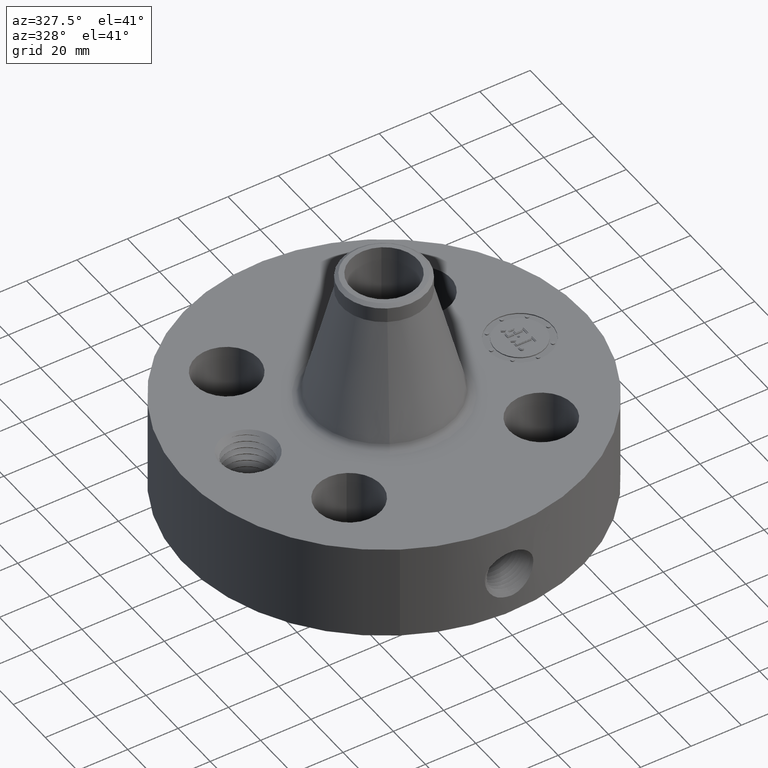
[diagram: clean part render]
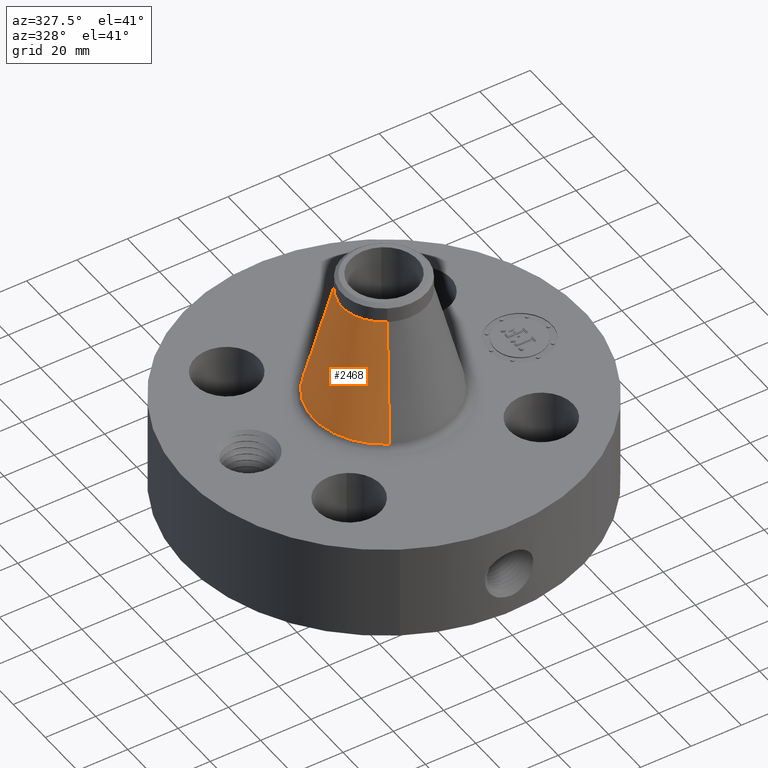
[diagram: same view with one face highlighted and labeled with its STEP entity id]
A machine part, auxiliary view. The second image highlights one B-rep face of the part: STEP entity #2468.
In plain terms, the highlighted conical surface has half-angle 14.181 deg.
Its self-contained STEP definition (entity closure, byte-faithful):
#1861=AXIS2_PLACEMENT_3D('Circle Axis2P3D',#1859,#1860,$) ;
#2429=AXIS2_PLACEMENT_3D('Cone Axis2P3D',#2426,#2427,#2428) ;
#2459=AXIS2_PLACEMENT_3D('Circle Axis2P3D',#2457,#2458,$) ;
#1837=CARTESIAN_POINT('Vertex',(0.528377857278,0.967189180172,1.840601666)) ;
#1844=CARTESIAN_POINT('Vertex',(-0.528377857278,-0.967189180172,1.840601666)) ;
#1859=CARTESIAN_POINT('Axis2P3D Location',(0.,0.,1.840601666)) ;
#2426=CARTESIAN_POINT('Axis2P3D Location',(0.,0.,3.59022616858)) ;
#2431=CARTESIAN_POINT('Line Origine',(0.422399356379,0.773196835511,2.71541391729)) ;
#2435=CARTESIAN_POINT('Vertex',(0.31642085548,0.57920449085,3.59022616858)) ;
#2442=CARTESIAN_POINT('Vertex',(-0.31642085548,-0.57920449085,3.59022616858)) ;
#2445=CARTESIAN_POINT('Line Origine',(-0.422399356379,-0.773196835511,2.71541391729)) ;
#2457=CARTESIAN_POINT('Axis2P3D Location',(0.,0.,3.59022616858)) ;
#1860=DIRECTION('Axis2P3D Direction',(0.,0.,-0.0393700787402)) ;
#2427=DIRECTION('Axis2P3D Direction',(0.,0.,-0.0393700787402)) ;
#2428=DIRECTION('Axis2P3D XDirection',(-0.0188750212049,-0.0345504945626,0.)) ;
#2432=DIRECTION('Vector Direction',(0.00462411814765,0.00846439149302,-0.0381703380653)) ;
#2446=DIRECTION('Vector Direction',(-0.00462411814765,-0.00846439149302,-0.0381703380653)) ;
#2458=DIRECTION('Axis2P3D Direction',(0.,0.,-0.0393700787402)) ;
#2433=VECTOR('Line Direction',#2432,0.0393700787402) ;
#2447=VECTOR('Line Direction',#2446,0.0393700787402) ;
#2463=ORIENTED_EDGE('',*,*,#1863,.F.) ;
#2464=ORIENTED_EDGE('',*,*,#2449,.T.) ;
#2465=ORIENTED_EDGE('',*,*,#2461,.T.) ;
#2466=ORIENTED_EDGE('',*,*,#2437,.F.) ;
#2468=ADVANCED_FACE('PartBody',(#2467),#2430,.T.) ;
#1862=CIRCLE('generated circle',#1861,1.10210619738) ;
#2460=CIRCLE('generated circle',#2459,0.660000000003) ;
#2430=CONICAL_SURFACE('Cone',#2429,0.660000000003,0.247505372841) ;
#1863=EDGE_CURVE('',#1845,#1838,#1862,.T.) ;
#2437=EDGE_CURVE('',#1838,#2436,#2434,.F.) ;
#2449=EDGE_CURVE('',#1845,#2443,#2448,.F.) ;
#2461=EDGE_CURVE('',#2443,#2436,#2460,.T.) ;
#2462=EDGE_LOOP('',(#2463,#2464,#2465,#2466)) ;
#2467=FACE_OUTER_BOUND('',#2462,.T.) ;
#2434=LINE('Line',#2431,#2433) ;
#2448=LINE('Line',#2445,#2447) ;
#1838=VERTEX_POINT('',#1837) ;
#1845=VERTEX_POINT('',#1844) ;
#2436=VERTEX_POINT('',#2435) ;
#2443=VERTEX_POINT('',#2442) ;